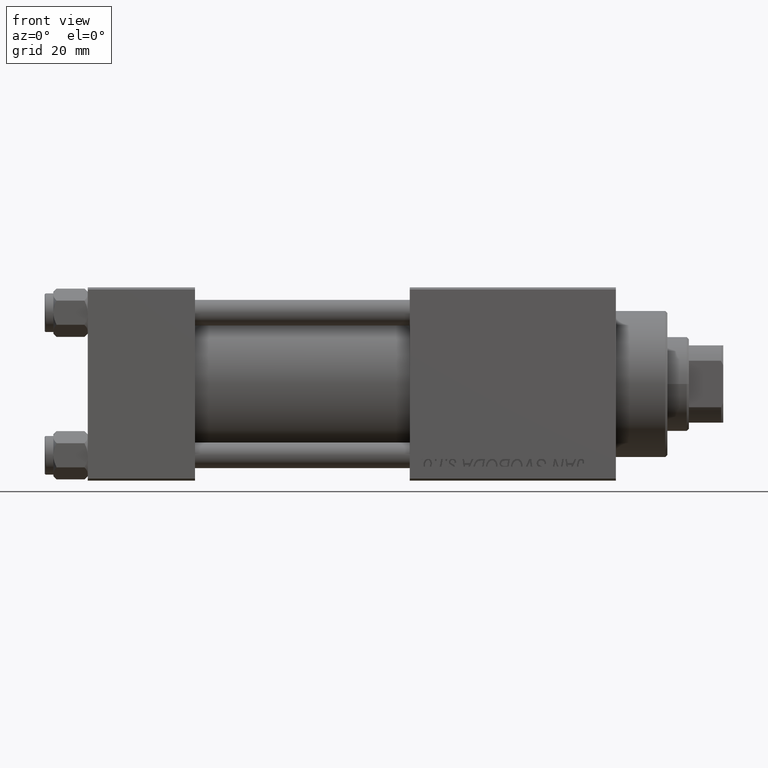
[diagram: clean part render]
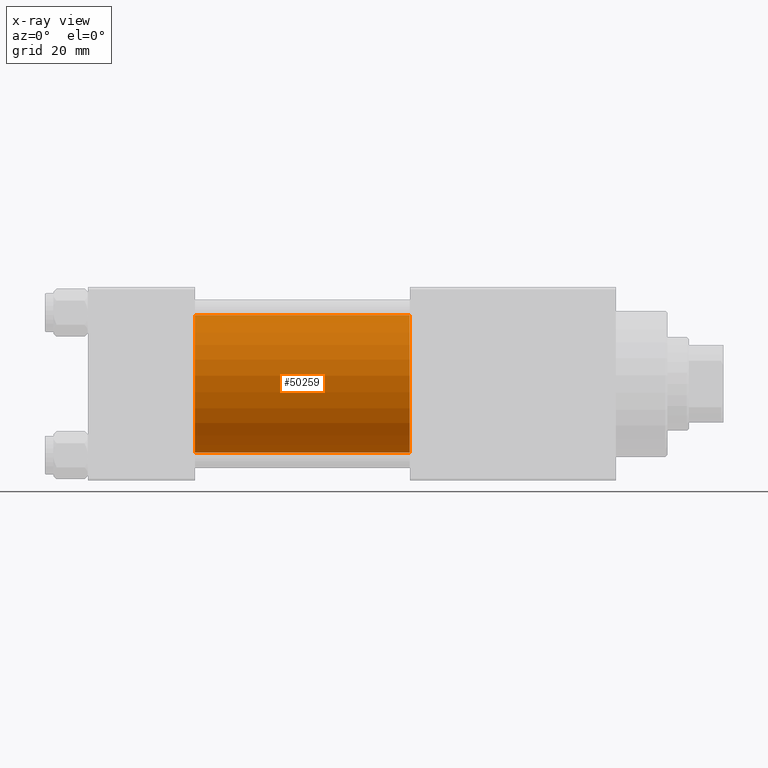
[diagram: x-ray — body ghosted, one internal face saturated and labeled with its STEP entity id]
A machine part, front view, then the same camera in x-ray: the body is ghosted and one INTERNAL B-rep face — a face not visible from any outside direction — is saturated and labeled: STEP entity #50259.
In plain terms, the highlighted cylindrical surface (partial cylindrical patch) has radius 16 mm, axis along (-1, -0, -0).
Its self-contained STEP definition (entity closure, byte-faithful):
#348 = DIRECTION ( 'NONE',  ( -1.000000000000000000, -0.000000000000000000, -0.000000000000000000 ) ) ;
#1839 = EDGE_CURVE ( 'NONE', #20432, #21403, #22356, .T. ) ;
#2425 = CARTESIAN_POINT ( 'NONE',  ( 75.00000000000001421, -2.602085213965210642E-15, 0.000000000000000000 ) ) ;
#3200 = CARTESIAN_POINT ( 'NONE',  ( 75.00000000000001421, -2.602085213965210642E-15, 0.000000000000000000 ) ) ;
#3442 = DIRECTION ( 'NONE',  ( 1.000000000000000000, 0.000000000000000000, 0.000000000000000000 ) ) ;
#3523 = VECTOR ( 'NONE', #348, 1000.000000000000000 ) ;
#3583 = EDGE_CURVE ( 'NONE', #13873, #43463, #25655, .T. ) ;
#6301 = ORIENTED_EDGE ( 'NONE', *, *, #1839, .F. ) ;
#6372 = EDGE_LOOP ( 'NONE', ( #15677, #14630, #6301, #18467 ) ) ;
#6501 = DIRECTION ( 'NONE',  ( -1.000000000000000000, -0.000000000000000000, -0.000000000000000000 ) ) ;
#8663 = CARTESIAN_POINT ( 'NONE',  ( 75.00000000000001421, -6.426503353294456087E-16, -16.00000000000000000 ) ) ;
#8911 = DIRECTION ( 'NONE',  ( -1.000000000000000000, -0.000000000000000000, -0.000000000000000000 ) ) ;
#13873 = VERTEX_POINT ( 'NONE', #45102 ) ;
#14630 = ORIENTED_EDGE ( 'NONE', *, *, #47419, .T. ) ;
#14897 = DIRECTION ( 'NONE',  ( 0.000000000000000000, 0.000000000000000000, 1.000000000000000000 ) ) ;
#15677 = ORIENTED_EDGE ( 'NONE', *, *, #3583, .T. ) ;
#15935 = AXIS2_PLACEMENT_3D ( 'NONE', #2425, #3442, #34492 ) ;
#16106 = CARTESIAN_POINT ( 'NONE',  ( 75.00000000000001421, -2.602085213965210642E-15, 16.00000000000000000 ) ) ;
#18467 = ORIENTED_EDGE ( 'NONE', *, *, #33095, .F. ) ;
#20432 = VERTEX_POINT ( 'NONE', #48071 ) ;
#21190 = DIRECTION ( 'NONE',  ( 0.000000000000000000, 0.000000000000000000, -1.000000000000000000 ) ) ;
#21207 = AXIS2_PLACEMENT_3D ( 'NONE', #3200, #6501, #14897 ) ;
#21403 = VERTEX_POINT ( 'NONE', #37633 ) ;
#22356 = CIRCLE ( 'NONE', #47534, 16.00000000000000000 ) ;
#25014 = CARTESIAN_POINT ( 'NONE',  ( 25.00000000000000000, -2.602085213965210642E-15, 0.000000000000000000 ) ) ;
#25603 = CYLINDRICAL_SURFACE ( 'NONE', #21207, 16.00000000000000000 ) ;
#25655 = CIRCLE ( 'NONE', #15935, 16.00000000000000000 ) ;
#28063 = LINE ( 'NONE', #16106, #3523 ) ;
#33095 = EDGE_CURVE ( 'NONE', #13873, #20432, #28063, .T. ) ;
#34492 = DIRECTION ( 'NONE',  ( 0.000000000000000000, 0.000000000000000000, -1.000000000000000000 ) ) ;
#37633 = CARTESIAN_POINT ( 'NONE',  ( 25.00000000000000000, -6.426503353294456087E-16, -16.00000000000000000 ) ) ;
#40543 = DIRECTION ( 'NONE',  ( 1.000000000000000000, 0.000000000000000000, 0.000000000000000000 ) ) ;
#43201 = CARTESIAN_POINT ( 'NONE',  ( 75.00000000000001421, -6.426503353294456087E-16, -16.00000000000000000 ) ) ;
#43463 = VERTEX_POINT ( 'NONE', #43201 ) ;
#43554 = LINE ( 'NONE', #8663, #46375 ) ;
#45102 = CARTESIAN_POINT ( 'NONE',  ( 75.00000000000001421, -2.602085213965210642E-15, 16.00000000000000000 ) ) ;
#45711 = FACE_OUTER_BOUND ( 'NONE', #6372, .T. ) ;
#46375 = VECTOR ( 'NONE', #8911, 1000.000000000000000 ) ;
#47419 = EDGE_CURVE ( 'NONE', #43463, #21403, #43554, .T. ) ;
#47534 = AXIS2_PLACEMENT_3D ( 'NONE', #25014, #40543, #21190 ) ;
#48071 = CARTESIAN_POINT ( 'NONE',  ( 25.00000000000000000, -2.602085213965210642E-15, 16.00000000000000000 ) ) ;
#50259 = ADVANCED_FACE ( 'NONE', ( #45711 ), #25603, .F. ) ;